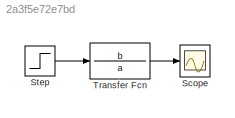
MODEL slx_2a3f5e72e7bd
KIND model
BLOCK [Scope] Scope
  Floating = off
  NumInputPorts = 1
  Ports = [1]
  ShowLegends = off
  TimeRange = 10
BLOCK [Step] Step
  After = 24
  SampleTime = 0
BLOCK [TransferFcn] Transfer Fcn
  Denominator = a
  Numerator = b
LINE Step:1 -> Transfer Fcn:1
LINE Transfer Fcn:1 -> Scope:1
